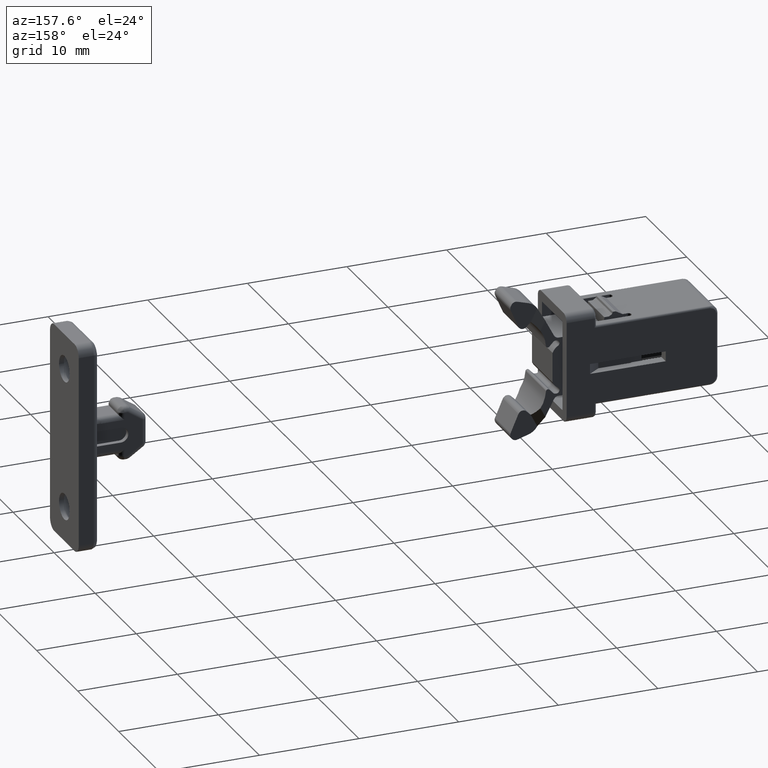
[diagram: clean part render]
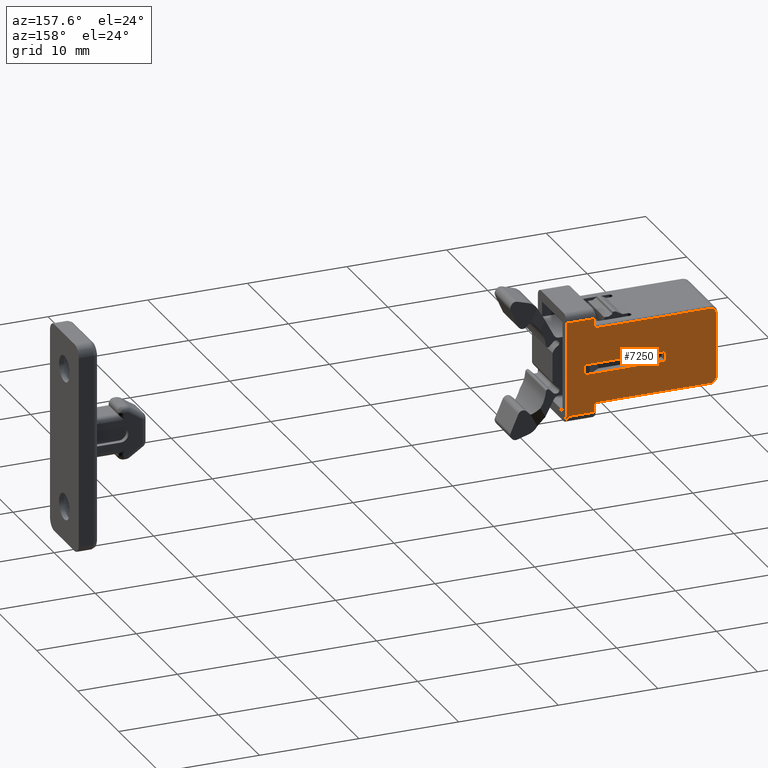
[diagram: same view with one face highlighted and labeled with its STEP entity id]
A machine part, auxiliary view. The second image highlights one B-rep face of the part: STEP entity #7250.
In plain terms, the highlighted face is a freeform B-spline surface patch.
Its self-contained STEP definition (entity closure, byte-faithful):
#4240=CARTESIAN_POINT('',(-2.800000000000000,3.500000000000000,4.749999999999890));
#4241=VERTEX_POINT('',#4240);
#4303=CARTESIAN_POINT('',(-2.800000000000000,3.500000000000000,3.800000000000000));
#4304=VERTEX_POINT('',#4303);
#4324=CARTESIAN_POINT('',(-2.800000000000000,3.500000000000000,3.800000000000000));
#4325=CARTESIAN_POINT('',(-2.800000000000000,3.500000000000000,4.749999999999890));
#4326=QUASI_UNIFORM_CURVE('',1,(#4324,#4325),.UNSPECIFIED.,.F.,.U.);
#4327=EDGE_CURVE('',#4304,#4241,#4326,.T.);
#4346=CARTESIAN_POINT('',(-2.800000000000000,3.500000000000000,-4.749999999999901));
#4347=VERTEX_POINT('',#4346);
#4370=CARTESIAN_POINT('',(-2.800000000000000,3.500000000000000,-3.799999999999900));
#4371=VERTEX_POINT('',#4370);
#4385=CARTESIAN_POINT('',(-2.800000000000000,3.500000000000000,-4.749999999999901));
#4386=CARTESIAN_POINT('',(-2.800000000000000,3.500000000000000,-3.799999999999900));
#4387=QUASI_UNIFORM_CURVE('',1,(#4385,#4386),.UNSPECIFIED.,.F.,.U.);
#4388=EDGE_CURVE('',#4347,#4371,#4387,.T.);
#4625=CARTESIAN_POINT('',(-14.449999999999999,3.500000000000000,-3.799999999999900));
#4626=VERTEX_POINT('',#4625);
#4627=CARTESIAN_POINT('',(-2.800000000000000,3.500000000000000,-3.799999999999900));
#4628=CARTESIAN_POINT('',(-14.449999999999999,3.500000000000000,-3.799999999999900));
#4629=QUASI_UNIFORM_CURVE('',1,(#4627,#4628),.UNSPECIFIED.,.F.,.U.);
#4630=EDGE_CURVE('',#4371,#4626,#4629,.T.);
#4675=CARTESIAN_POINT('',(-15.0,3.500000000000000,-3.249999999999900));
#4676=VERTEX_POINT('',#4675);
#4690=CARTESIAN_POINT('',(-14.449999999999999,3.500000000000000,-3.799999999999900));
#4691=CARTESIAN_POINT('',(-14.999999999999995,3.499999999999999,-3.799999999999901));
#4692=CARTESIAN_POINT('',(-15.0,3.500000000000000,-3.249999999999900));
#4700=(BOUNDED_CURVE()B_SPLINE_CURVE(2,(#4690,#4691,#4692),.UNSPECIFIED.,.F.,.U.)CURVE()GEOMETRIC_REPRESENTATION_ITEM()QUASI_UNIFORM_CURVE()RATIONAL_B_SPLINE_CURVE((1.0,0.707106781186548,1.0))REPRESENTATION_ITEM(''));
#4701=EDGE_CURVE('',#4626,#4676,#4700,.T.);
#4736=CARTESIAN_POINT('',(-15.0,3.500000000000000,3.250000000000000));
#4737=VERTEX_POINT('',#4736);
#4751=CARTESIAN_POINT('',(-15.0,3.500000000000000,-3.249999999999900));
#4752=CARTESIAN_POINT('',(-15.0,3.500000000000000,3.250000000000000));
#4753=QUASI_UNIFORM_CURVE('',1,(#4751,#4752),.UNSPECIFIED.,.F.,.U.);
#4754=EDGE_CURVE('',#4676,#4737,#4753,.T.);
#4784=CARTESIAN_POINT('',(-14.449999999999999,3.500000000000000,3.800000000000000));
#4785=VERTEX_POINT('',#4784);
#4799=CARTESIAN_POINT('',(-15.0,3.500000000000000,3.250000000000000));
#4800=CARTESIAN_POINT('',(-14.999999999999995,3.499999999999999,3.800000000000000));
#4801=CARTESIAN_POINT('',(-14.449999999999999,3.500000000000000,3.800000000000000));
#4809=(BOUNDED_CURVE()B_SPLINE_CURVE(2,(#4799,#4800,#4801),.UNSPECIFIED.,.F.,.U.)CURVE()GEOMETRIC_REPRESENTATION_ITEM()QUASI_UNIFORM_CURVE()RATIONAL_B_SPLINE_CURVE((1.0,0.707106781186548,1.0))REPRESENTATION_ITEM(''));
#4810=EDGE_CURVE('',#4737,#4785,#4809,.T.);
#4849=CARTESIAN_POINT('',(-14.449999999999999,3.500000000000000,3.800000000000000));
#4850=CARTESIAN_POINT('',(-2.800000000000000,3.500000000000000,3.800000000000000));
#4851=QUASI_UNIFORM_CURVE('',1,(#4849,#4850),.UNSPECIFIED.,.F.,.U.);
#4852=EDGE_CURVE('',#4785,#4304,#4851,.T.);
#5911=CARTESIAN_POINT('',(-9.950000000000001,3.500000000000000,0.200000000000103));
#5912=VERTEX_POINT('',#5911);
#5918=CARTESIAN_POINT('',(-1.749999999999970,3.500000000000060,0.200000000000103));
#5919=VERTEX_POINT('',#5918);
#5920=CARTESIAN_POINT('',(-1.749999999999970,3.500000000000060,0.200000000000103));
#5921=CARTESIAN_POINT('',(-9.950000000000001,3.500000000000000,0.200000000000103));
#5922=QUASI_UNIFORM_CURVE('',1,(#5920,#5921),.UNSPECIFIED.,.F.,.U.);
#5923=EDGE_CURVE('',#5919,#5912,#5922,.T.);
#5946=CARTESIAN_POINT('',(-1.749999999999970,3.500000000000060,-0.800000000000000));
#5947=VERTEX_POINT('',#5946);
#5948=CARTESIAN_POINT('',(-1.749999999999970,3.500000000000060,-0.800000000000000));
#5949=CARTESIAN_POINT('',(-1.749999999999970,3.500000000000060,0.200000000000103));
#5950=QUASI_UNIFORM_CURVE('',1,(#5948,#5949),.UNSPECIFIED.,.F.,.U.);
#5951=EDGE_CURVE('',#5947,#5919,#5950,.T.);
#5974=CARTESIAN_POINT('',(-9.950000000000001,3.500000000000060,-0.800000000000000));
#5975=VERTEX_POINT('',#5974);
#5976=CARTESIAN_POINT('',(-9.950000000000001,3.500000000000060,-0.800000000000000));
#5977=CARTESIAN_POINT('',(-1.749999999999970,3.500000000000060,-0.800000000000000));
#5978=QUASI_UNIFORM_CURVE('',1,(#5976,#5977),.UNSPECIFIED.,.F.,.U.);
#5979=EDGE_CURVE('',#5975,#5947,#5978,.T.);
#6036=CARTESIAN_POINT('',(-9.950000000000001,3.500000000000000,0.200000000000103));
#6037=CARTESIAN_POINT('',(-9.950000000000001,3.500000000000060,-0.800000000000000));
#6038=QUASI_UNIFORM_CURVE('',1,(#6036,#6037),.UNSPECIFIED.,.F.,.U.);
#6039=EDGE_CURVE('',#5912,#5975,#6038,.T.);
#7080=CARTESIAN_POINT('',(0.0,3.500000000000000,4.749999999999890));
#7081=VERTEX_POINT('',#7080);
#7082=CARTESIAN_POINT('',(-2.800000000000000,3.500000000000000,4.749999999999890));
#7083=CARTESIAN_POINT('',(0.0,3.500000000000000,4.749999999999890));
#7084=QUASI_UNIFORM_CURVE('',1,(#7082,#7083),.UNSPECIFIED.,.F.,.U.);
#7085=EDGE_CURVE('',#4241,#7081,#7084,.T.);
#7133=CARTESIAN_POINT('',(0.0,3.500000000000000,-4.749999999999901));
#7134=VERTEX_POINT('',#7133);
#7135=CARTESIAN_POINT('',(0.0,3.500000000000000,-4.749999999999901));
#7136=CARTESIAN_POINT('',(-2.800000000000000,3.500000000000000,-4.749999999999901));
#7137=QUASI_UNIFORM_CURVE('',1,(#7135,#7136),.UNSPECIFIED.,.F.,.U.);
#7138=EDGE_CURVE('',#7134,#4347,#7137,.T.);
#7223=CARTESIAN_POINT('',(-15.749249970927091,3.500000000000000,5.224524981587036));
#7224=CARTESIAN_POINT('',(0.749250373258442,3.500000000000000,5.224524981587036));
#7225=CARTESIAN_POINT('',(-15.749249970927091,3.500000000000000,-5.224525236396903));
#7226=CARTESIAN_POINT('',(0.749250373258442,3.500000000000000,-5.224525236396903));
#7227=B_SPLINE_SURFACE_WITH_KNOTS('',1,1,((#7223,#7225),(#7224,#7226)),.UNSPECIFIED.,.F.,.F.,.U.,(2,2),(2,2),(0.0,16.498500344185530),(0.0,10.449050217983940),.UNSPECIFIED.);
#7228=ORIENTED_EDGE('',*,*,#7138,.T.);
#7229=ORIENTED_EDGE('',*,*,#4388,.T.);
#7230=ORIENTED_EDGE('',*,*,#4630,.T.);
#7231=ORIENTED_EDGE('',*,*,#4701,.T.);
#7232=ORIENTED_EDGE('',*,*,#4754,.T.);
#7233=ORIENTED_EDGE('',*,*,#4810,.T.);
#7234=ORIENTED_EDGE('',*,*,#4852,.T.);
#7235=ORIENTED_EDGE('',*,*,#4327,.T.);
#7236=ORIENTED_EDGE('',*,*,#7085,.T.);
#7237=CARTESIAN_POINT('',(0.0,3.500000000000000,4.749999999999890));
#7238=CARTESIAN_POINT('',(0.0,3.500000000000000,-4.749999999999901));
#7239=QUASI_UNIFORM_CURVE('',1,(#7237,#7238),.UNSPECIFIED.,.F.,.U.);
#7240=EDGE_CURVE('',#7081,#7134,#7239,.T.);
#7241=ORIENTED_EDGE('',*,*,#7240,.T.);
#7242=EDGE_LOOP('',(#7228,#7229,#7230,#7231,#7232,#7233,#7234,#7235,#7236,#7241));
#7243=FACE_OUTER_BOUND('',#7242,.T.);
#7244=ORIENTED_EDGE('',*,*,#5923,.T.);
#7245=ORIENTED_EDGE('',*,*,#6039,.T.);
#7246=ORIENTED_EDGE('',*,*,#5979,.T.);
#7247=ORIENTED_EDGE('',*,*,#5951,.T.);
#7248=EDGE_LOOP('',(#7244,#7245,#7246,#7247));
#7249=FACE_BOUND('',#7248,.T.);
#7250=ADVANCED_FACE('',(#7243,#7249),#7227,.T.);